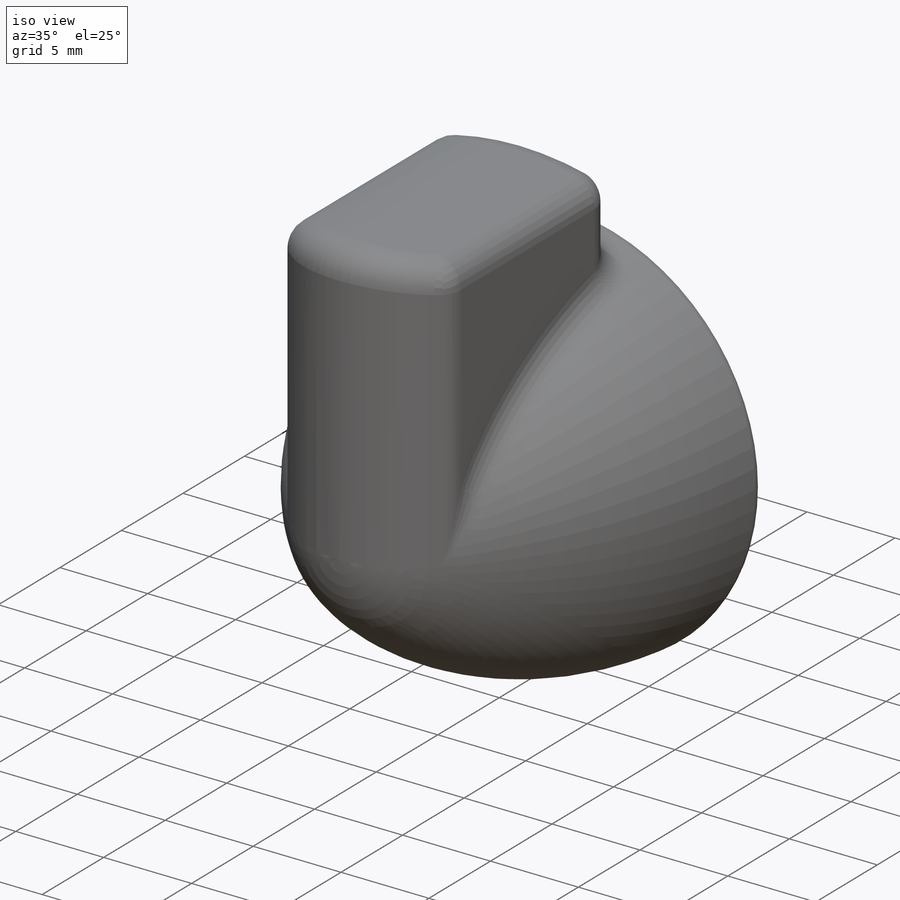
[diagram: iso view]
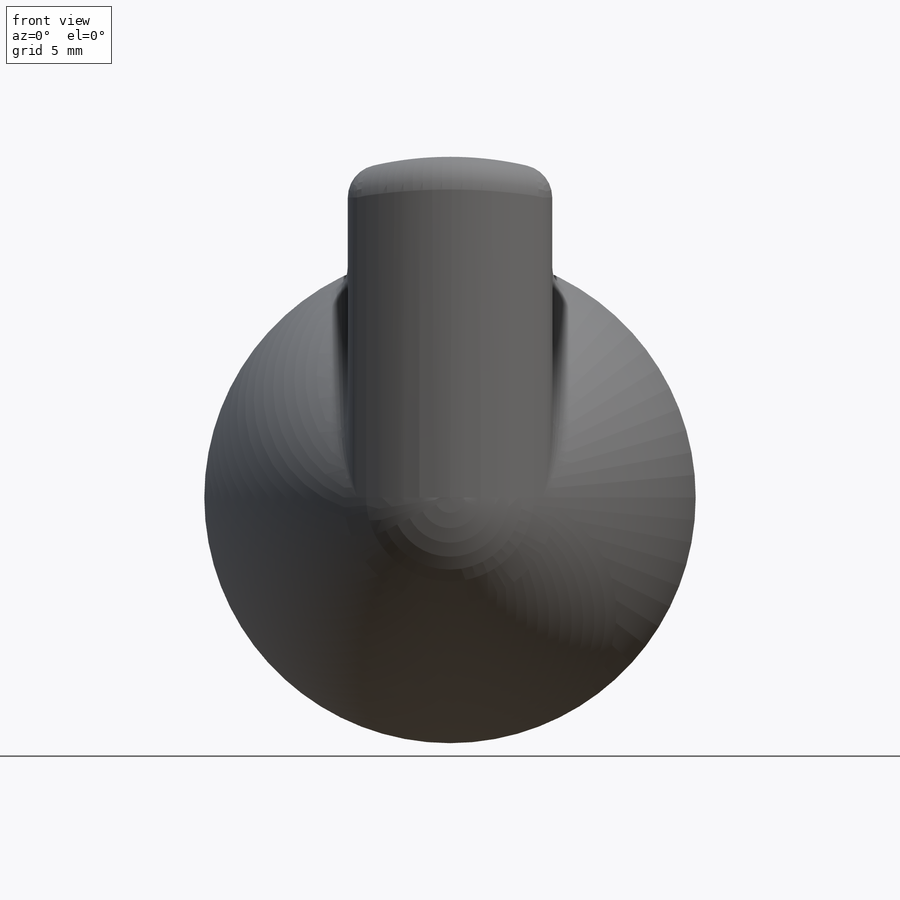
[diagram: front view]
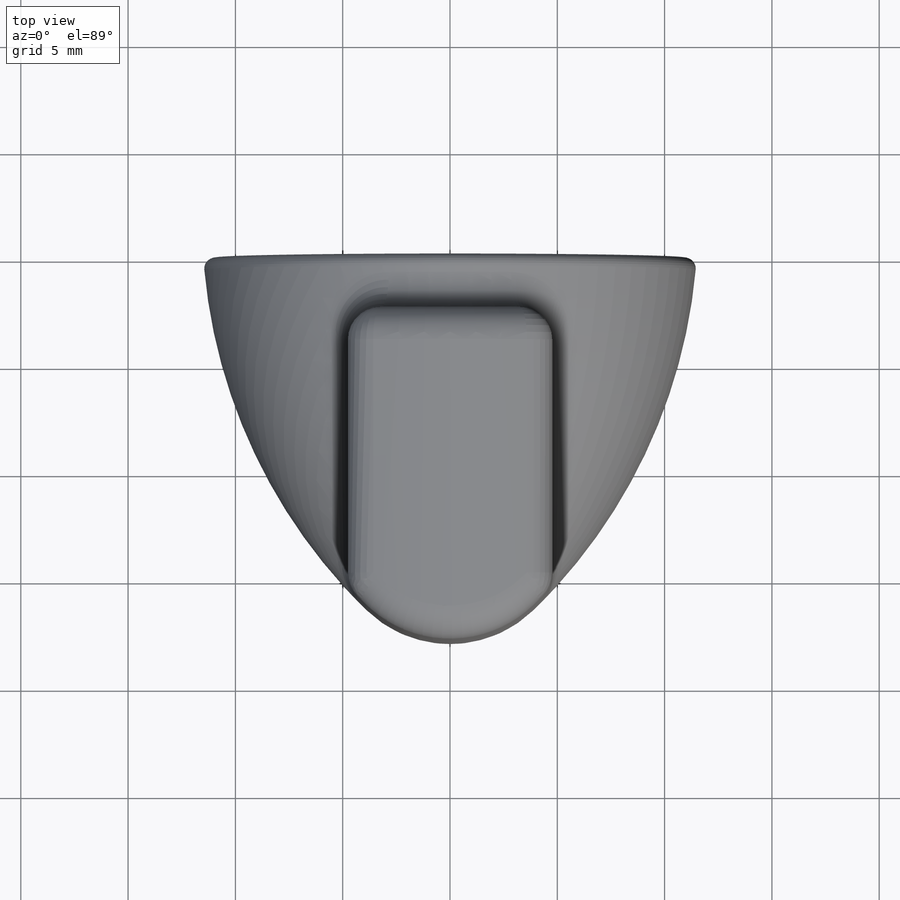
[diagram: top view]
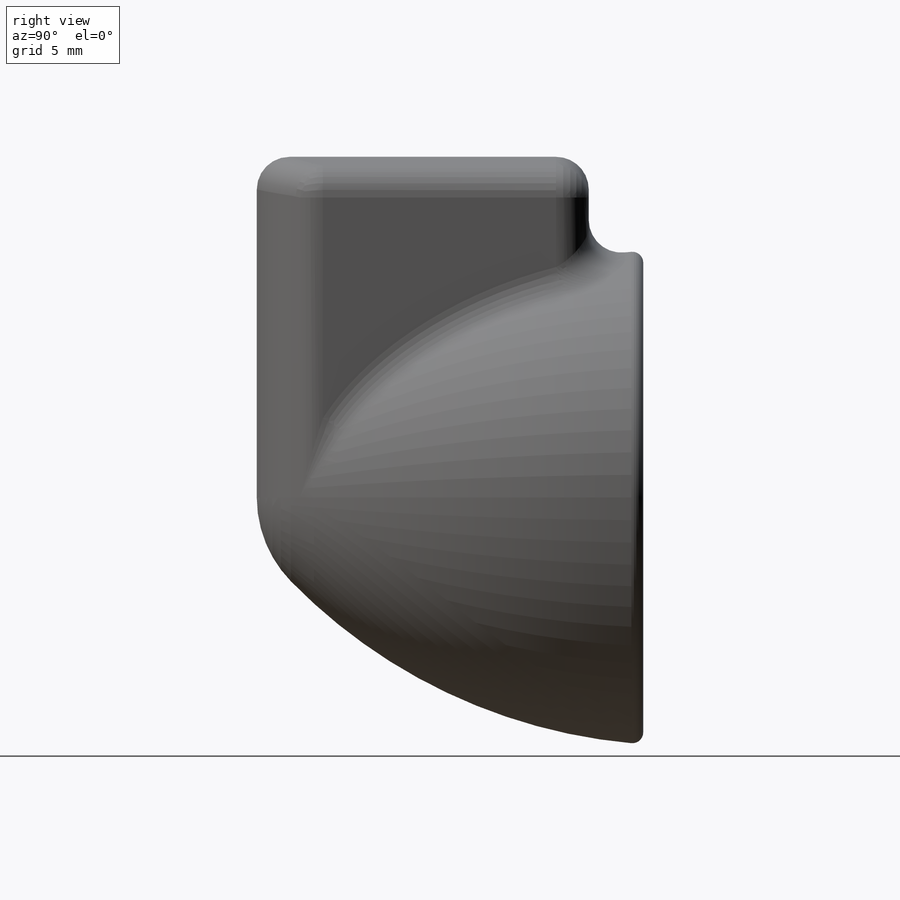
[diagram: right view]
SOLIDWORKS PART (.sldprt)
format: sldprt  version: not decoded by parser v0  size: 418,304 bytes
history: native  units: mm
features: sketch x4, fillet x2, material x1, revolve x1, plane x1, extrude x1, cut_extrude x1 (+16 scaffold rows collapsed)
feature tree (27):
  scaffold x16  (default folders/planes/origin — collapsed)
  material  "Acrylic (Medium-high impact)"
  sketch  "Sketch1"  dims[D1=22.987mm]
  sketch  "Sketch3"  dims[c1.D1=25.4mm c1.D2=50.8mm c1.D3=9.525mm c2.D1=50.8mm c2.D3=9.525mm c3.D1=50.8mm c3.D2=50.8mm c3.D3=9.525mm c3.D5=50.8mm c3.D4=18.0086mm c4.D3=18.0086mm c4.D4=17.9578mm]
  revolve  "Revolve8"  Angle=360deg
  plane  "Plane1"  Offset=2.54mm
  sketch  "Sketch4"  dims[D1=31.75mm D2=4.7625mm D3=4.7625mm]
  extrude  "Extrude2"  [1 undecoded]
  sketch  "Sketch5"
  cut_extrude  "Extrude3"  [1 undecoded]
  fillet  "Fillet2"  Radius=1.524mm
  fillet  "Fillet3"  Radius=0.508mm
decode coverage: 6 of 9 modeling features carry decoded parameters
note: 2 parameter values undecoded
note: suppression state not decoded; provenance and decode notes live in map.json
